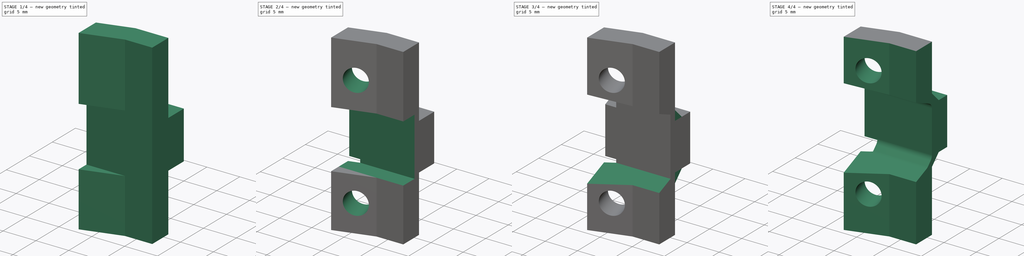
[diagram: build sequence overview — one tinted view per stage of 4, left to right]
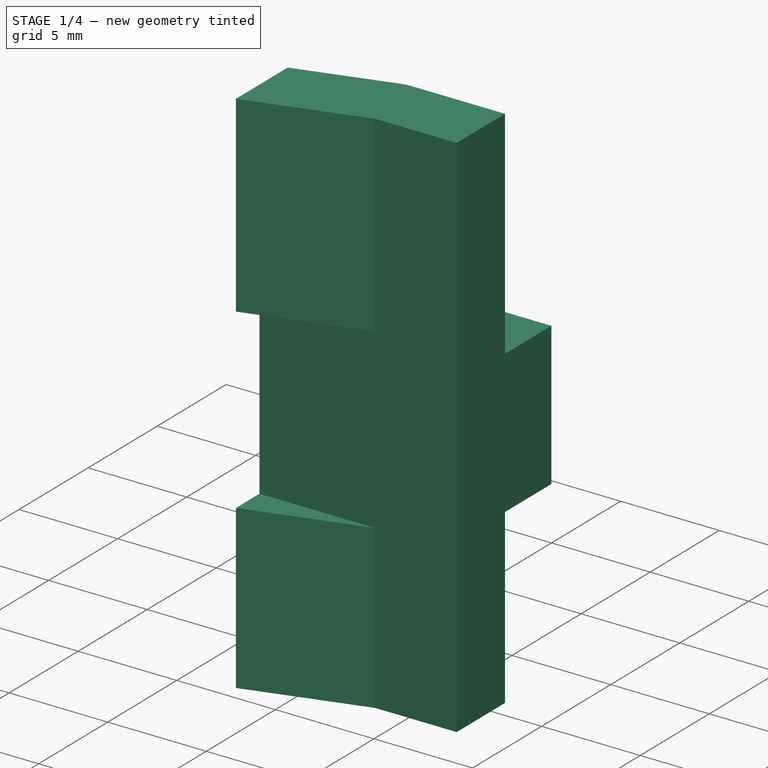
[diagram: stage 1 of 4 — iso view after this stage's code; geometry added in this stage tinted green]
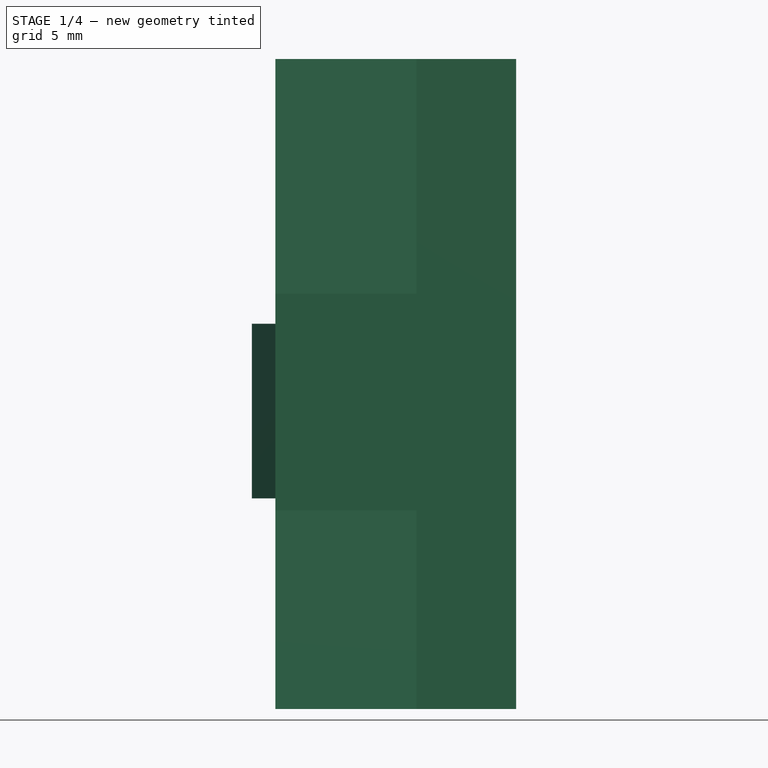
[diagram: stage 1 of 4 — front view after this stage's code; geometry added in this stage tinted green]
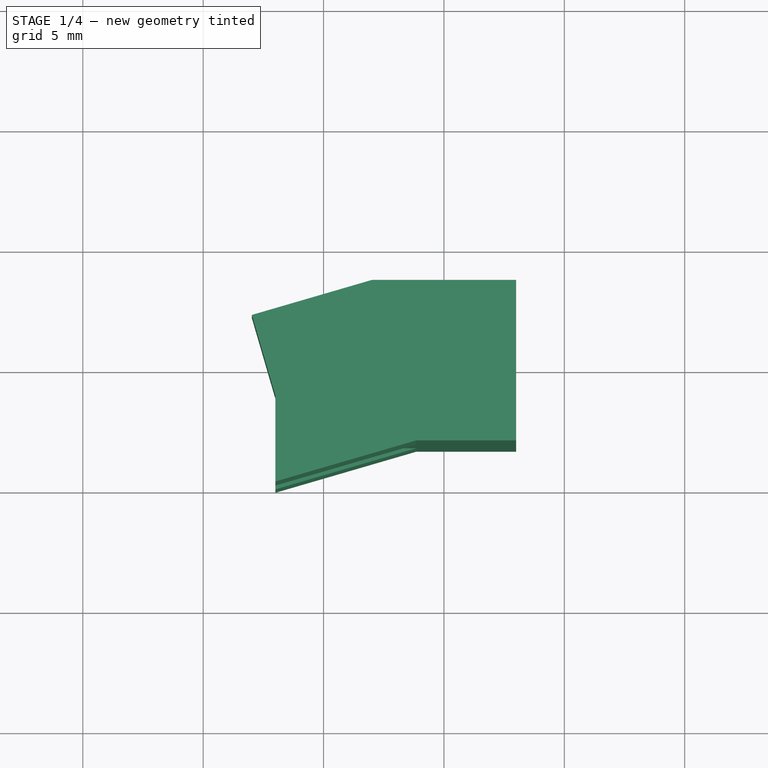
[diagram: stage 1 of 4 — top view after this stage's code; geometry added in this stage tinted green]
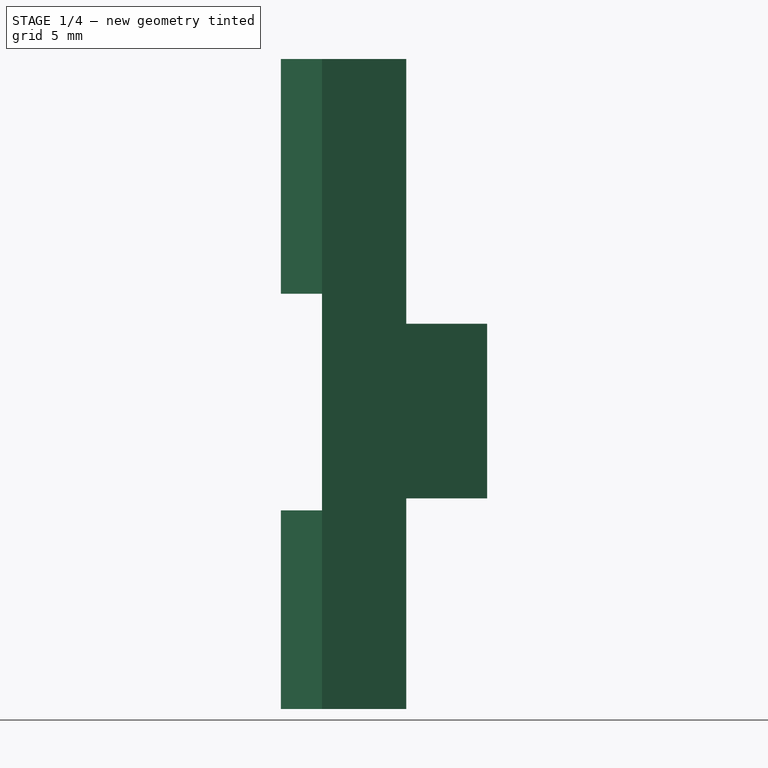
[diagram: stage 1 of 4 — right view after this stage's code; geometry added in this stage tinted green]
FCSTD DOCUMENT  (FreeCAD 0.17R13662 (Git))
Label: x_belt_tensioner_clamp
License: CreativeCommons Attribution-ShareAlike
LicenseURL: http://creativecommons.org/licenses/by-sa/4.0/
objects: Sketcher::SketchObject×11, PartDesign::Pocket×5, PartDesign::Pad×4, PartDesign::AdditivePipe×2, PartDesign::Fillet×2, PartDesign::Body×1, Part::Mirroring×1
note: 37 computed .brp shape members not serialized (recipe doc carries the construction recipe); baked Part::Feature solids carry a one-line shape summary decoded from their .brp

FEATURE [Sketcher::SketchObject] Sketch
  MapMode = 5
  Support = -> [XY_Plane]
  sketch-geometry (7):
    g0: LineSegment StartX=8 StartY=0 StartZ=0 EndX=8 EndY=3.75 EndZ=0
    g1: LineSegment StartX=8 StartY=3.75 StartZ=0 EndX=13 EndY=5.20737 EndZ=0
    g2: LineSegment StartX=13 StartY=5.20737 StartZ=0 EndX=18 EndY=5.20737 EndZ=0
    g3: LineSegment StartX=18 StartY=5.20737 StartZ=0 EndX=18 EndY=1.70737 EndZ=0
    g4: LineSegment [constr] StartX=18 StartY=5.20737 StartZ=0 EndX=18 EndY=5.70737 EndZ=0
    g5: LineSegment StartX=13.8577 StartY=1.70737 StartZ=0 EndX=18 EndY=1.70737 EndZ=0
    g6: LineSegment StartX=8 StartY=0 StartZ=0 EndX=13.8577 EndY=1.70737 EndZ=0
  constraints (21):
    c: PointOnObject(g0,g-1)
    c: Coincident(g0,g1)
    c: Coincident(g1,g2)
    c: Horizontal(g2)
    c: Coincident(g2,g3)
    c: Vertical(g3)
    c: Coincident(g4,g2)
    c: Vertical(g4)
    c: DistanceY(g4,g4) = 0.5
    c: DistanceY(g3,g3) = 3.5
    c: DistanceX(g2) = 18
    c: Coincident(g3,g5)
    c: Coincident(g5,g6)
    c: Coincident(g0,g6)
    c: Horizontal(g5)
    c: Parallel(g6,g1)
    c: DistanceX(g2,g2) = 5
    c: DistanceX(g0) = 8
    c: Vertical(g0)
    c: DistanceY(g0,g0) = 3.75
    c: Angle(g1) = 0.283616
FEATURE [PartDesign::Pad] Pad
  Length = 27
  Length2 = 100
  Profile = -> Sketch
  Type = 0
FEATURE [Sketcher::SketchObject] Sketch001
  ExternalGeometry = -> [Pad]
  MapMode = 5
  Placement = pos=(-0.381003,1.30716,0) rot=(-0.10044,0.703531,0.703531;3.3418rad)
  Support = -> [Pad]
  sketch-geometry (4):
    g0: LineSegment StartX=-8.72976 StartY=16 StartZ=0 EndX=-13.9378 EndY=16 EndZ=0
    g1: LineSegment StartX=-13.9378 StartY=16 StartZ=0 EndX=-13.9378 EndY=8.75 EndZ=0
    g2: LineSegment StartX=-13.9378 StartY=8.75 StartZ=0 EndX=-8.72976 EndY=8.75 EndZ=0
    g3: LineSegment StartX=-8.72976 StartY=8.75 StartZ=0 EndX=-8.72976 EndY=16 EndZ=0
  constraints (12):
    c: Coincident(g0,g1)
    c: Coincident(g1,g2)
    c: Coincident(g2,g3)
    c: Coincident(g3,g0)
    c: Horizontal(g0)
    c: Horizontal(g2)
    c: Vertical(g1)
    c: Vertical(g3)
    c: PointOnObject(g0,g-3)
    c: DistanceY(g0,g-3) = 11
    c: DistanceY(g3,g3) = 7.25
    c: PointOnObject(g0,g-4)
FEATURE [PartDesign::Pad] Pad001
  BaseFeature = -> Pad
  Length = 3.5
  Length2 = 100
  Profile = -> Sketch001
  Type = 0
FEATURE [Sketcher::SketchObject] Sketch002
  ExternalGeometry = -> [Pad001]
  MapMode = 5
  Placement = pos=(0,1.70737,0) rot=(1,0,0;1.5708rad)
  Support = -> [Pad001]
  sketch-geometry (4):
    g0: LineSegment StartX=8 StartY=17.25 StartZ=0 EndX=18 EndY=17.25 EndZ=0
    g1: LineSegment StartX=18 StartY=17.25 StartZ=0 EndX=18 EndY=8.25 EndZ=0
    g2: LineSegment StartX=18 StartY=8.25 StartZ=0 EndX=8 EndY=8.25 EndZ=0
    g3: LineSegment StartX=8 StartY=8.25 StartZ=0 EndX=8 EndY=17.25 EndZ=0
  constraints (12):
    c: Coincident(g0,g1)
    c: Coincident(g1,g2)
    c: Coincident(g2,g3)
    c: Coincident(g3,g0)
    c: Horizontal(g0)
    c: Horizontal(g2)
    c: Vertical(g1)
    c: Vertical(g3)
    c: PointOnObject(g2,g-4)
    c: DistanceY(g-4,g2) = 8.25
    c: DistanceY(g1,g1) = 9
    c: PointOnObject(g1,g-6)
FEATURE [PartDesign::Pocket] Pocket
  BaseFeature = -> Pad001
  Length = 5
  Length2 = 100
  Profile = -> Sketch002
  Reversed = true
  Type = 0
FEATURE [Sketcher::SketchObject] Sketch006
  ExternalGeometry = -> [Pocket]
  MapMode = 5
  Placement = pos=(0,0,8.75) rot=(1,0,0;3.14159rad)
  Support = -> [Pocket]
  sketch-geometry (4):
    g0: LineSegment StartX=18 StartY=-5.20737 StartZ=0 EndX=18 EndY=-8.56754 EndZ=0
    g1: LineSegment StartX=18 StartY=-8.56754 StartZ=0 EndX=12.0206 EndY=-8.56754 EndZ=0
    g2: LineSegment StartX=12.0206 StartY=-8.56754 StartZ=0 EndX=13 EndY=-5.20737 EndZ=0
    g3: LineSegment StartX=13 StartY=-5.20737 StartZ=0 EndX=18 EndY=-5.20737 EndZ=0
  constraints (9):
    c: Coincident(g0,g1)
    c: Coincident(g1,g2)
    c: Coincident(g2,g3)
    c: Coincident(g0,g3)
    c: Coincident(g0,g-3)
    c: Coincident(g1,g-4)
    c: Coincident(g2,g-4)
    c: Vertical(g0)
    c: Horizontal(g1)
FEATURE [PartDesign::Pad] Pad002
  BaseFeature = -> Pocket
  Length = 7.25
  Length2 = 100
  Profile = -> Sketch006
  Reversed = true
  Type = 0
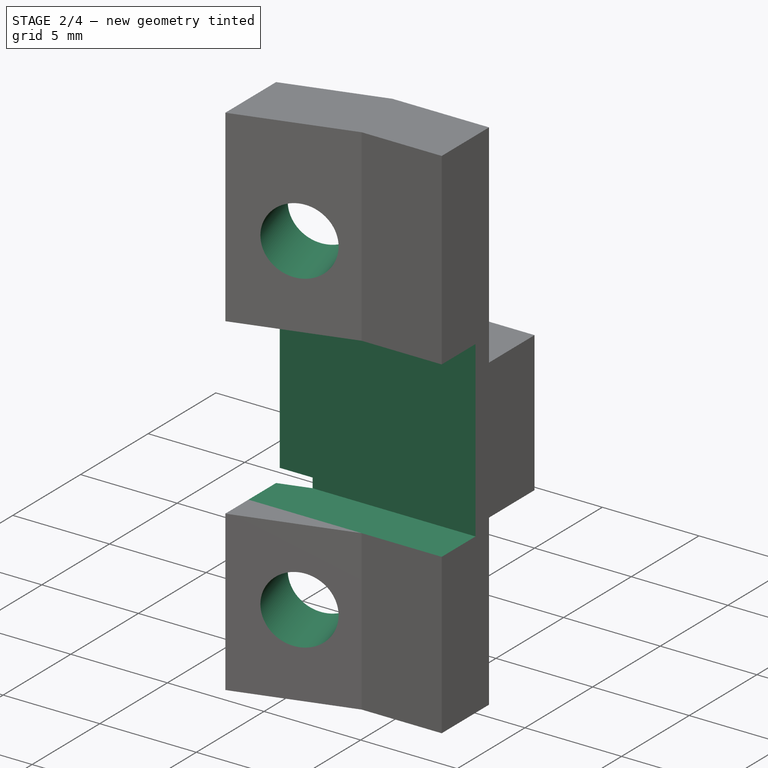
[diagram: stage 2 of 4 — iso view after this stage's code; geometry added in this stage tinted green]
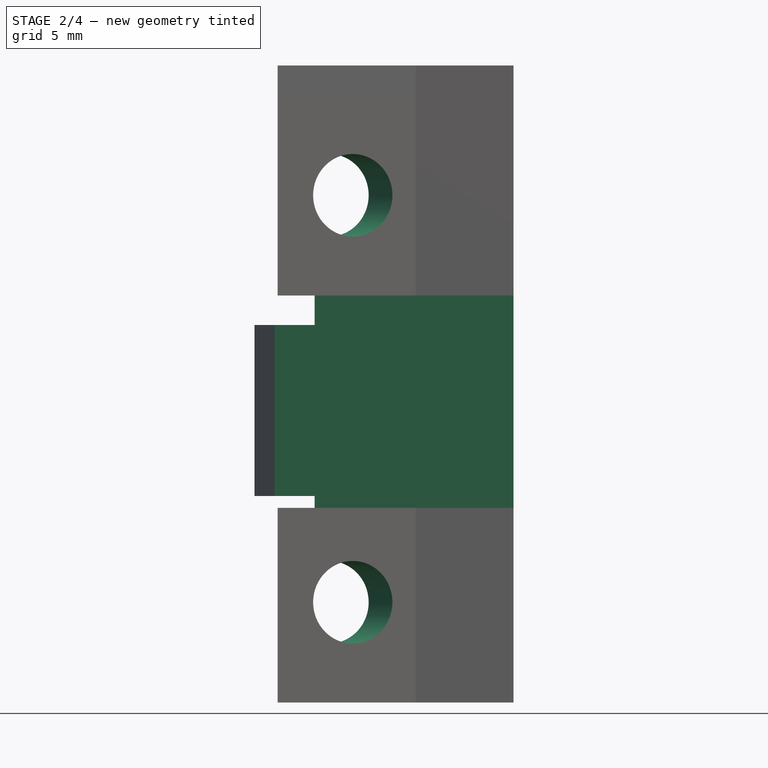
[diagram: stage 2 of 4 — front view after this stage's code; geometry added in this stage tinted green]
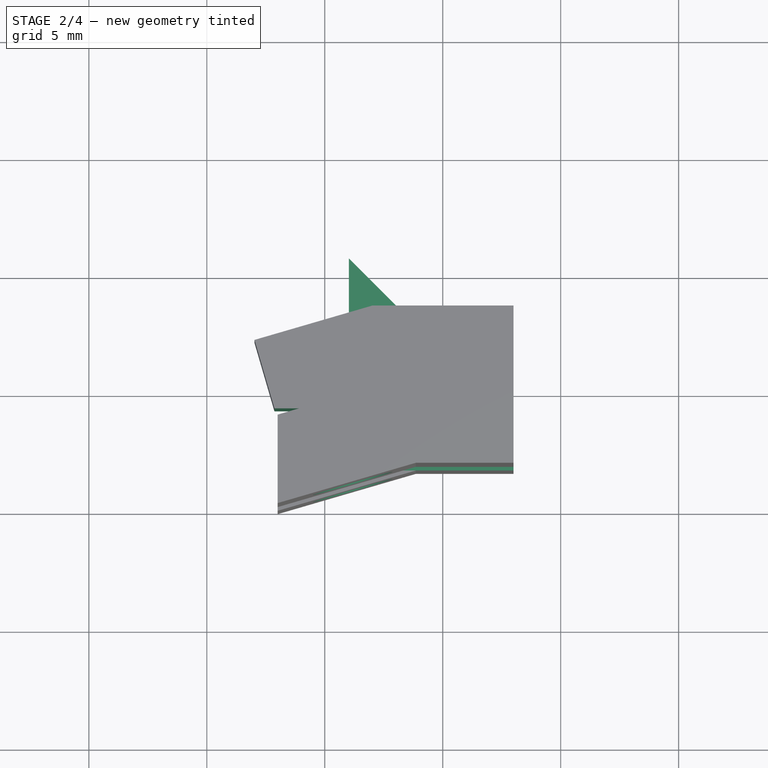
[diagram: stage 2 of 4 — top view after this stage's code; geometry added in this stage tinted green]
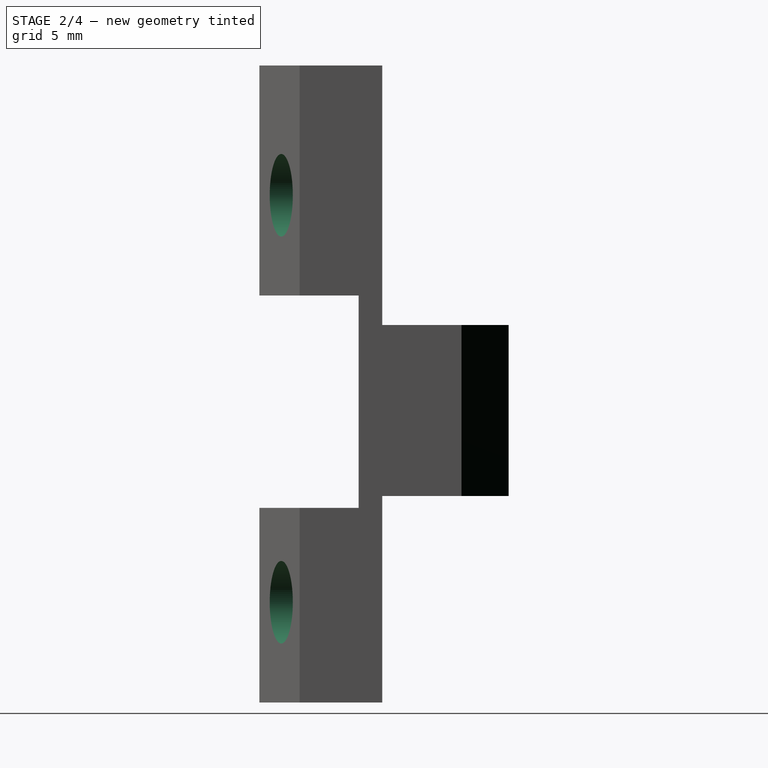
[diagram: stage 2 of 4 — right view after this stage's code; geometry added in this stage tinted green]
FEATURE [Sketcher::SketchObject] Sketch007
  ExternalGeometry = -> [Pad002]
  MapMode = 5
  Placement = pos=(0,0,8.25) rot=(0,0,1;0rad)
  Support = -> [Pad002]
  sketch-geometry (4):
    g0: LineSegment StartX=18 StartY=1.70737 StartZ=0 EndX=7.86669 EndY=1.70737 EndZ=0
    g1: LineSegment StartX=7.86669 StartY=1.70737 StartZ=0 EndX=7.86669 EndY=4.20737 EndZ=0
    g2: LineSegment StartX=7.86669 StartY=4.20737 StartZ=0 EndX=18 EndY=4.20737 EndZ=0
    g3: LineSegment StartX=18 StartY=4.20737 StartZ=0 EndX=18 EndY=1.70737 EndZ=0
  constraints (11):
    c: Coincident(g0,g1)
    c: Coincident(g1,g2)
    c: Coincident(g3,g0)
    c: Horizontal(g0)
    c: Horizontal(g2)
    c: Vertical(g1)
    c: Vertical(g3)
    c: Coincident(g0,g-3)
    c: Coincident(g2,g3)
    c: PointOnObject(g1,g-4)
    c: DistanceY(g2,g-3) = 1
FEATURE [PartDesign::Pocket] Pocket001
  BaseFeature = -> Pad002
  Length = 9
  Length2 = 100
  Profile = -> Sketch007
  Reversed = true
  Type = 0
FEATURE [Sketcher::SketchObject] Sketch004
  MapMode = 5
  Placement = pos=(0.626434,-2.1492,0) rot=(0.980221,0.139942,0.139942;1.59077rad)
  Support = -> [Pocket001]
  sketch-geometry (2):
    g0: Circle CenterX=11 CenterY=4.25 CenterZ=0 NormalX=0 NormalY=0 NormalZ=1 AngleXU=0 Radius=1.75
    g1: Circle CenterX=11 CenterY=21.5 CenterZ=0 NormalX=0 NormalY=0 NormalZ=1 AngleXU=0 Radius=1.75
  constraints (6):
    c: DistanceX(g1) = 11
    c: DistanceY(g1) = 21.5
    c: DistanceX(g0,g1) = 0
    c: DistanceY(g0,g1) = 17.25
    c: Radius(g0) = 1.75
    c: Equal(g0,g1)
FEATURE [PartDesign::Pocket] Pocket002
  BaseFeature = -> Pocket001
  Length = 5
  Length2 = 100
  Profile = -> Sketch004
  Type = 0
FEATURE [Sketcher::SketchObject] Sketch008
  ExternalGeometry = -> [Pocket002]
  MapMode = 5
  Placement = pos=(0,0,16) rot=(0,0,1;0rad)
  Support = -> [Pocket002]
  sketch-geometry (4):
    g0: LineSegment StartX=13.0206 StartY=8.56754 StartZ=0 EndX=11.0206 EndY=10.5675 EndZ=0
    g1: LineSegment StartX=11.0206 StartY=10.5675 StartZ=0 EndX=11.0206 EndY=8.27607 EndZ=0
    g2: LineSegment StartX=11.0206 StartY=8.27607 StartZ=0 EndX=12.0206 EndY=8.56754 EndZ=0
    g3: LineSegment StartX=12.0206 StartY=8.56754 StartZ=0 EndX=13.0206 EndY=8.56754 EndZ=0
  constraints (11):
    c: Coincident(g0,g1)
    c: Coincident(g1,g2)
    c: Coincident(g2,g3)
    c: Coincident(g3,g0)
    c: Vertical(g1)
    c: Angle(g0) = 2.35619
    c: DistanceY(g0,g0) = 2
    c: DistanceX(g2,g2) = 1
    c: Coincident(g2,g-3)
    c: Horizontal(g3)
    c: PointOnObject(g1,g-4)
FEATURE [PartDesign::Pad] Pad003
  BaseFeature = -> Pocket002
  Length = 7.25
  Length2 = 100
  Profile = -> Sketch008
  Reversed = true
  Type = 0
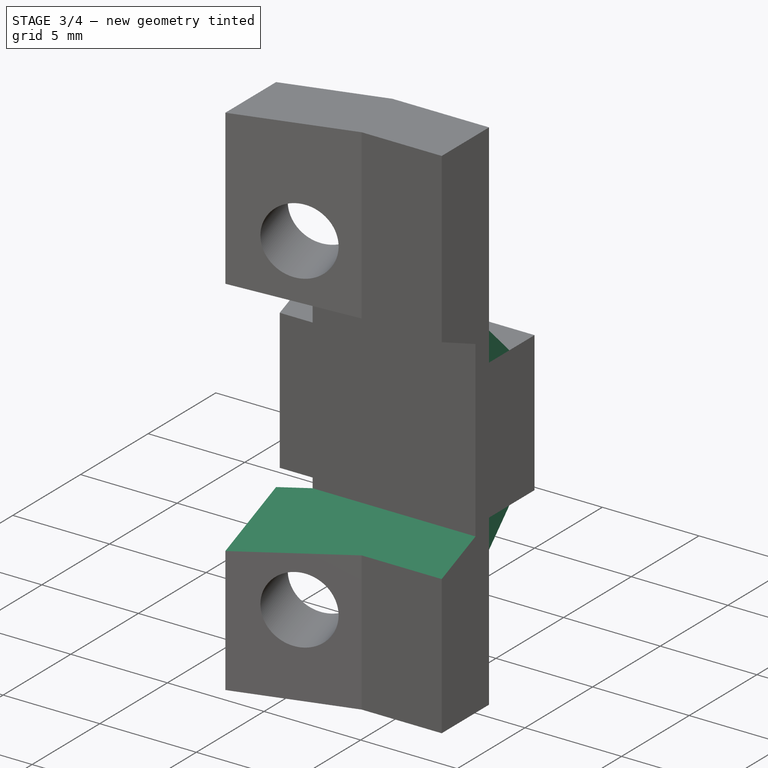
[diagram: stage 3 of 4 — iso view after this stage's code; geometry added in this stage tinted green]
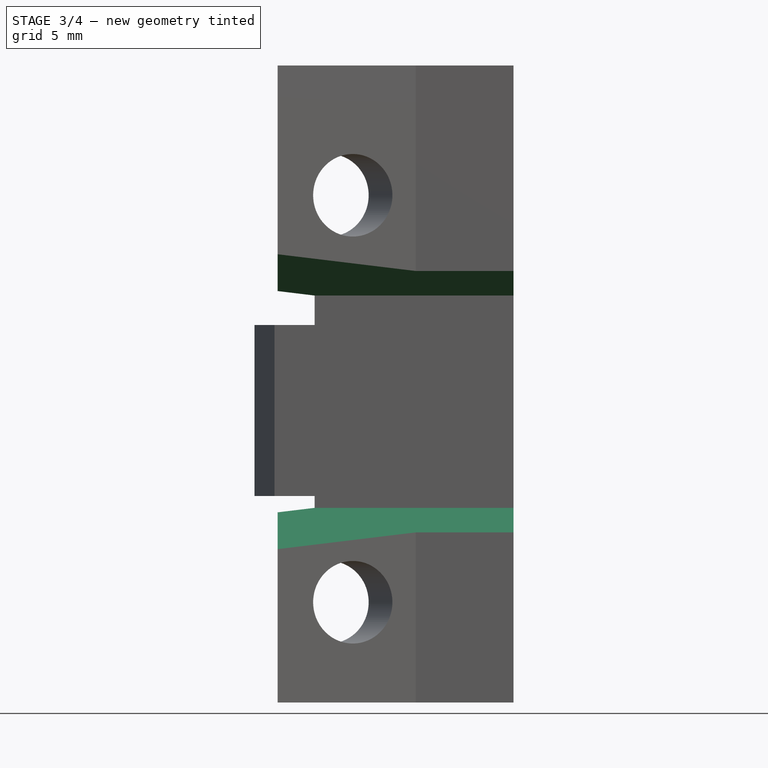
[diagram: stage 3 of 4 — front view after this stage's code; geometry added in this stage tinted green]
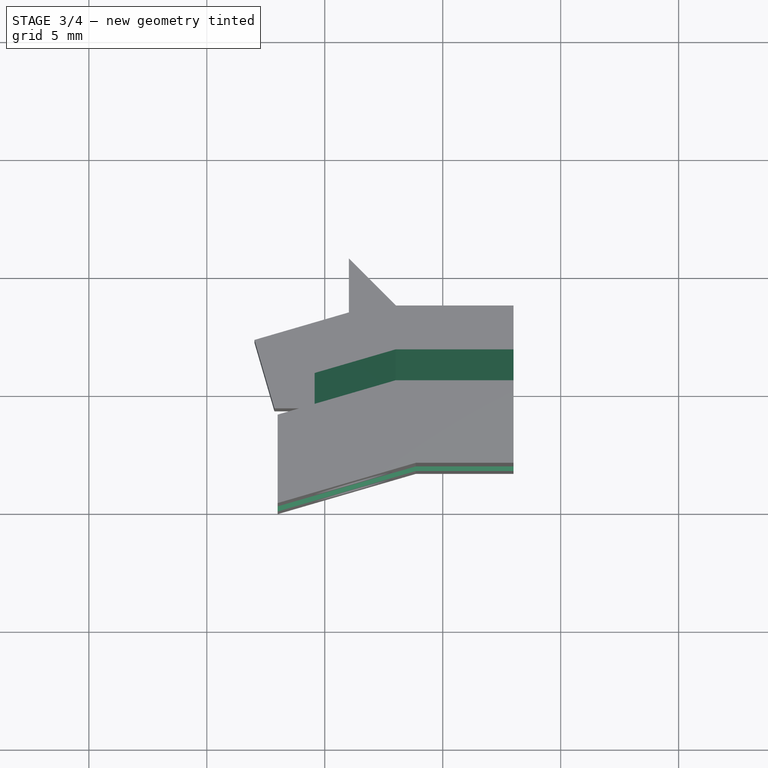
[diagram: stage 3 of 4 — top view after this stage's code; geometry added in this stage tinted green]
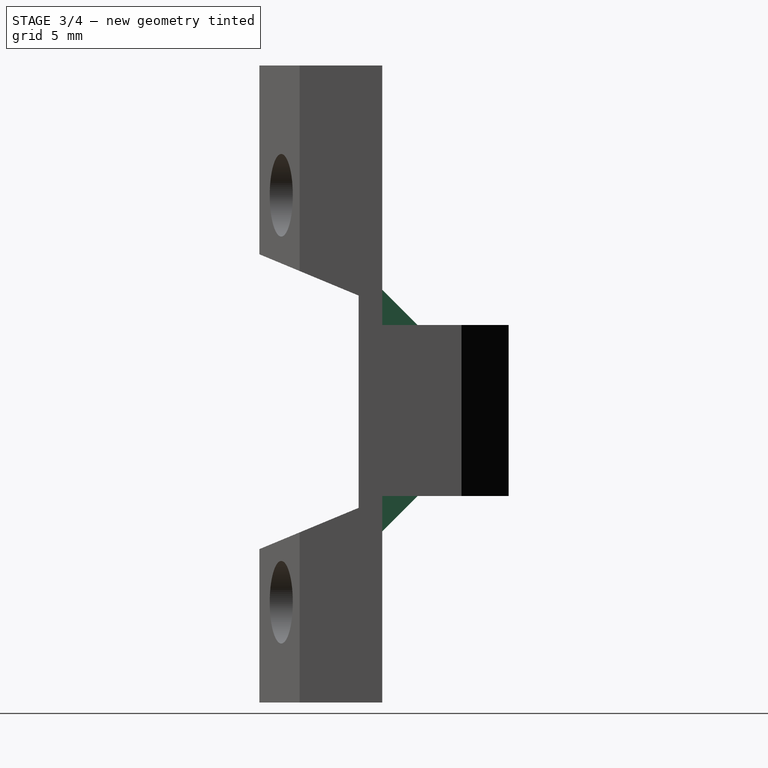
[diagram: stage 3 of 4 — right view after this stage's code; geometry added in this stage tinted green]
FEATURE [Sketcher::SketchObject] Sketch009
  ExternalGeometry = -> [Pad003]
  MapMode = 5
  Placement = pos=(18,0,0) rot=(0.57735,0.57735,0.57735;2.0944rad)
  Support = -> [Pad003]
  sketch-geometry (6):
    g0: LineSegment StartX=4.20737 StartY=17.25 StartZ=0 EndX=0 EndY=19 EndZ=0
    g1: LineSegment StartX=0 StartY=19 StartZ=0 EndX=0 EndY=17.25 EndZ=0
    g2: LineSegment StartX=0 StartY=17.25 StartZ=0 EndX=4.20737 EndY=17.25 EndZ=0
    g3: LineSegment StartX=4.20737 StartY=8.25 StartZ=0 EndX=0 EndY=6.5 EndZ=0
    g4: LineSegment StartX=0 StartY=6.5 StartZ=0 EndX=0 EndY=8.25 EndZ=0
    g5: LineSegment StartX=0 StartY=8.25 StartZ=0 EndX=4.20737 EndY=8.25 EndZ=0
  constraints (14):
    c: Coincident(g0,g1)
    c: Coincident(g1,g2)
    c: Coincident(g3,g4)
    c: Coincident(g4,g5)
    c: Coincident(g3,g5)
    c: Coincident(g3,g-6)
    c: Coincident(g4,g-5)
    c: Vertical(g4)
    c: Vertical(g1)
    c: Coincident(g1,g-4)
    c: Coincident(g0,g2)
    c: Coincident(g0,g-3)
    c: Equal(g1,g4)
    c: DistanceY(g4,g4) = 1.75
FEATURE [PartDesign::Pocket] Pocket003
  BaseFeature = -> Pad003
  Length = 5
  Length2 = 100
  Profile = -> Sketch009
  Type = 1
FEATURE [Sketcher::SketchObject] Sketch010
  ExternalGeometry = -> [Pocket003]
  MapMode = 5
  Placement = pos=(18,0,0) rot=(0.57735,0.57735,0.57735;2.0944rad)
  Support = -> [Pocket003]
  sketch-geometry (3):
    g0: LineSegment StartX=5.20737 StartY=8.75 StartZ=0 EndX=5.20737 EndY=7.25 EndZ=0
    g1: LineSegment StartX=5.20737 StartY=7.25 StartZ=0 EndX=6.70737 EndY=8.75 EndZ=0
    g2: LineSegment StartX=6.70737 StartY=8.75 StartZ=0 EndX=5.20737 EndY=8.75 EndZ=0
  constraints (8):
    c: Coincident(g0,g1)
    c: Coincident(g1,g2)
    c: Coincident(g0,g2)
    c: Coincident(g0,g-4)
    c: Horizontal(g2)
    c: Vertical(g0)
    c: Equal(g0,g2)
    c: DistanceX(g2,g2) = 1.5
FEATURE [PartDesign::AdditivePipe] AdditivePipe
  AuxilleryCurvelinear = true
  AuxillerySpineTangent = false
  BaseFeature = -> Pocket003
  Binormal = (0,0,0)
  Mode = 0
  Profile = -> Sketch010
  Spine = -> Pocket003 [Edge24,Edge21]
  SpineTangent = false
  Transformation = 0
  Transition = 0
FEATURE [Sketcher::SketchObject] Sketch011
  ExternalGeometry = -> [AdditivePipe]
  MapMode = 5
  Placement = pos=(18,0,0) rot=(0.57735,0.57735,0.57735;2.0944rad)
  Support = -> [AdditivePipe]
  sketch-geometry (3):
    g0: LineSegment StartX=5.20737 StartY=16 StartZ=0 EndX=5.20737 EndY=17.5 EndZ=0
    g1: LineSegment StartX=5.20737 StartY=17.5 StartZ=0 EndX=6.70737 EndY=16 EndZ=0
    g2: LineSegment StartX=6.70737 StartY=16 StartZ=0 EndX=5.20737 EndY=16 EndZ=0
  constraints (8):
    c: Coincident(g0,g1)
    c: Coincident(g1,g2)
    c: Coincident(g0,g2)
    c: Coincident(g0,g-4)
    c: Vertical(g0)
    c: Horizontal(g2)
    c: Equal(g2,g0)
    c: Equal(g0,g-5)
FEATURE [PartDesign::AdditivePipe] AdditivePipe001
  AuxilleryCurvelinear = true
  AuxillerySpineTangent = false
  BaseFeature = -> AdditivePipe
  Binormal = (0,0,0)
  Mode = 0
  Profile = -> Sketch011
  Spine = -> AdditivePipe [Edge49,Edge67]
  SpineTangent = false
  Transformation = 0
  Transition = 0
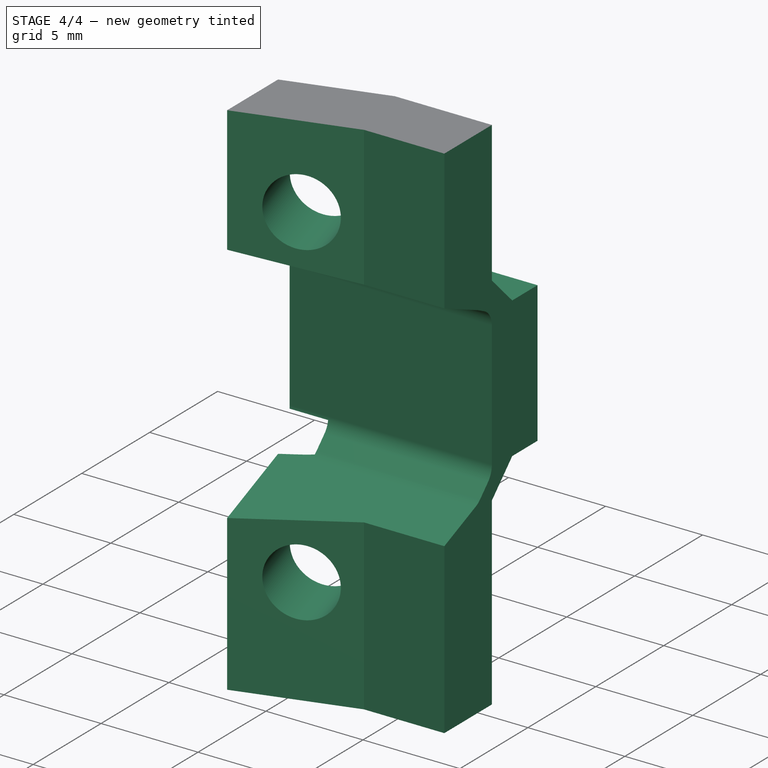
[diagram: stage 4 of 4 — iso view after this stage's code; geometry added in this stage tinted green]
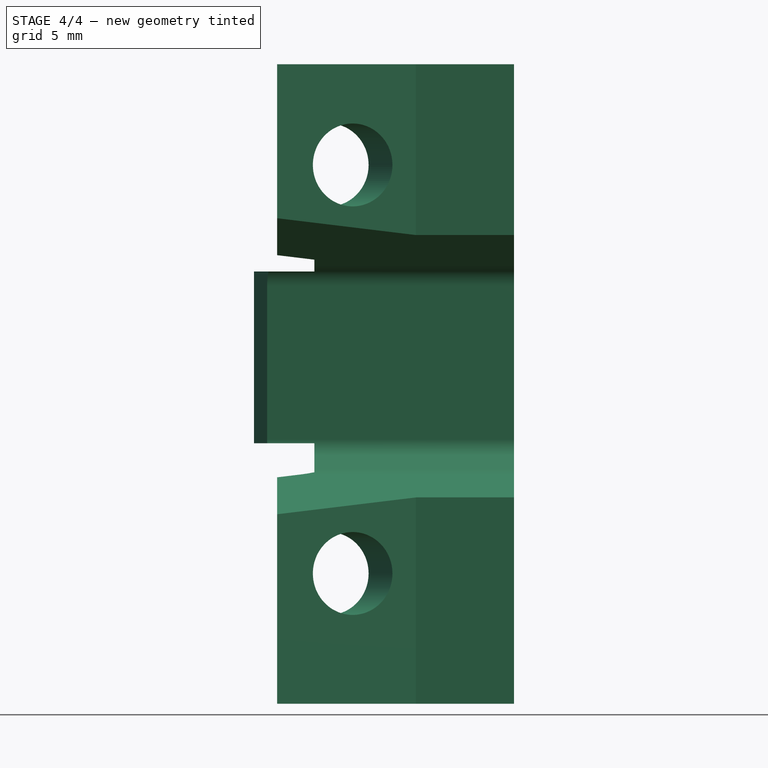
[diagram: stage 4 of 4 — front view after this stage's code; geometry added in this stage tinted green]
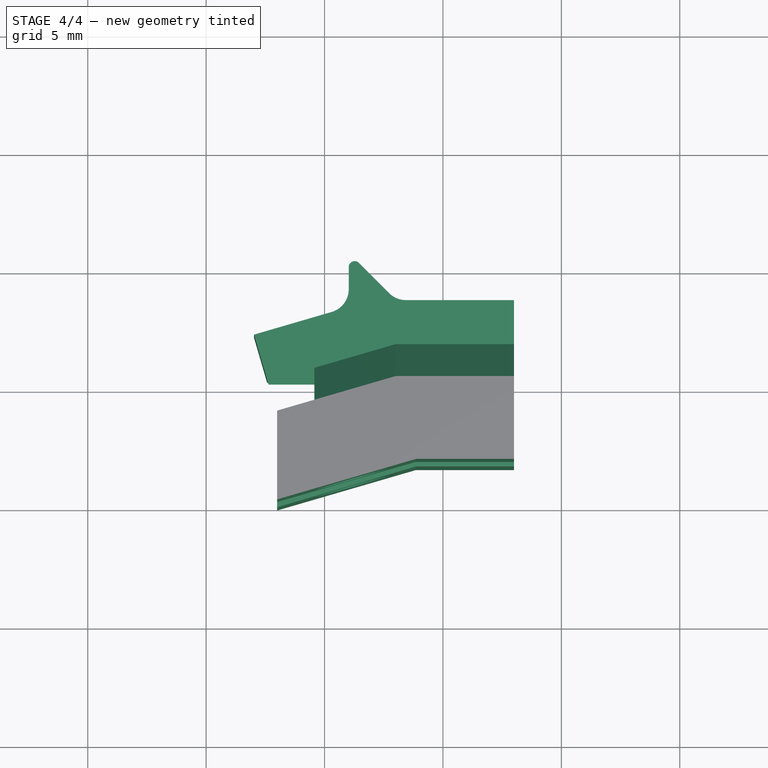
[diagram: stage 4 of 4 — top view after this stage's code; geometry added in this stage tinted green]
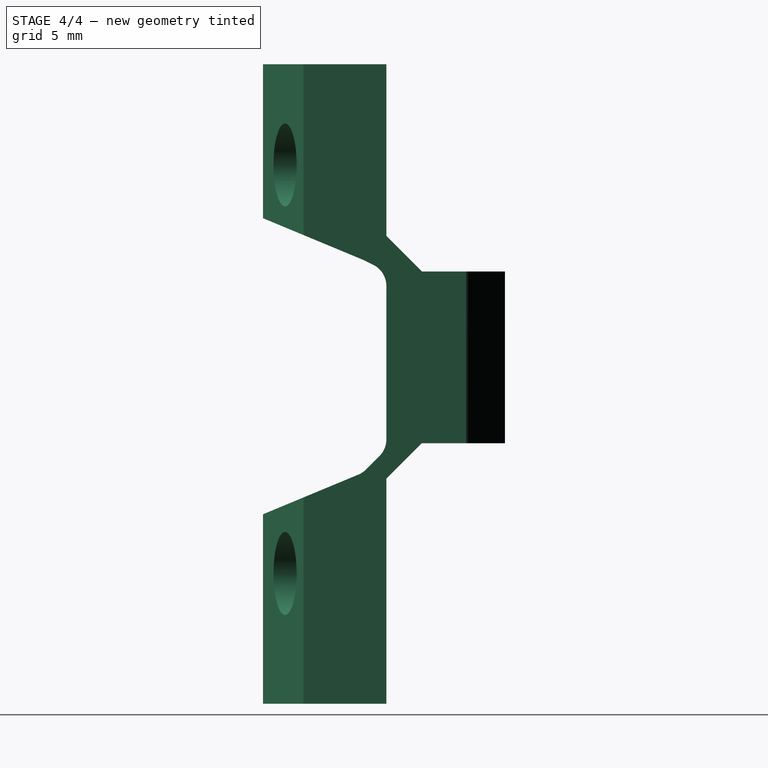
[diagram: stage 4 of 4 — right view after this stage's code; geometry added in this stage tinted green]
FEATURE [Sketcher::SketchObject] Sketch012
  ExternalGeometry = -> [AdditivePipe001]
  MapMode = 5
  Placement = pos=(18,0,0) rot=(0.57735,0.57735,0.57735;2.0944rad)
  Support = -> [AdditivePipe001]
  sketch-geometry (4):
    g0: LineSegment StartX=4.20737 StartY=17.25 StartZ=0 EndX=5.20737 EndY=16.25 EndZ=0
    g1: LineSegment StartX=5.20737 StartY=16.25 StartZ=0 EndX=5.20737 EndY=8.73773 EndZ=0
    g2: LineSegment StartX=5.20737 StartY=8.73773 StartZ=0 EndX=4.20737 EndY=8.25 EndZ=0
    g3: LineSegment StartX=4.20737 StartY=17.25 StartZ=0 EndX=4.20737 EndY=8.25 EndZ=0
  constraints (10):
    c: Coincident(g0,g1)
    c: Coincident(g1,g2)
    c: Coincident(g2,g-3)
    c: Coincident(g2,g3)
    c: Coincident(g0,g3)
    c: Coincident(g0,g-3)
    c: Angle(g2) = -2.68781
    c: Angle(g0) = -0.785398
    c: Vertical(g1)
    c: DistanceX(g0,g0) = 1
FEATURE [PartDesign::Pocket] Pocket004
  BaseFeature = -> AdditivePipe001
  Length = 5
  Length2 = 100
  Profile = -> Sketch012
  Type = 1
FEATURE [PartDesign::Fillet] Fillet
  Base = -> Pocket004 [Edge28,Edge45,Edge68,Edge70,Edge73]
  BaseFeature = -> Pocket004
  Radius = 1
FEATURE [PartDesign::Fillet] Fillet001
  Base = -> Fillet [Edge117]
  BaseFeature = -> Fillet
  Radius = 0.25
FEATURE [PartDesign::Body] Body
  Group = -> [Sketch,Pad,Sketch001,Pad001,Sketch002,Pocket,Sketch004,Sketch006,Pad002,Sketch007,Pocket001,Sketch008,Pocket002,Pad003,Sketch009,Pocket003,Sketch010,AdditivePipe,Sketch011,AdditivePipe001,Sketch012,Pocket004,Fillet,Fillet001]
  Origin = -> Origin
  Tip = -> Fillet001
FEATURE [Part::Mirroring] Part__Mirroring  label="Fillet001 (Mirror #1)"
  Base = (0,0,0)
  Normal = (0,0,1)
  Source = -> Fillet001
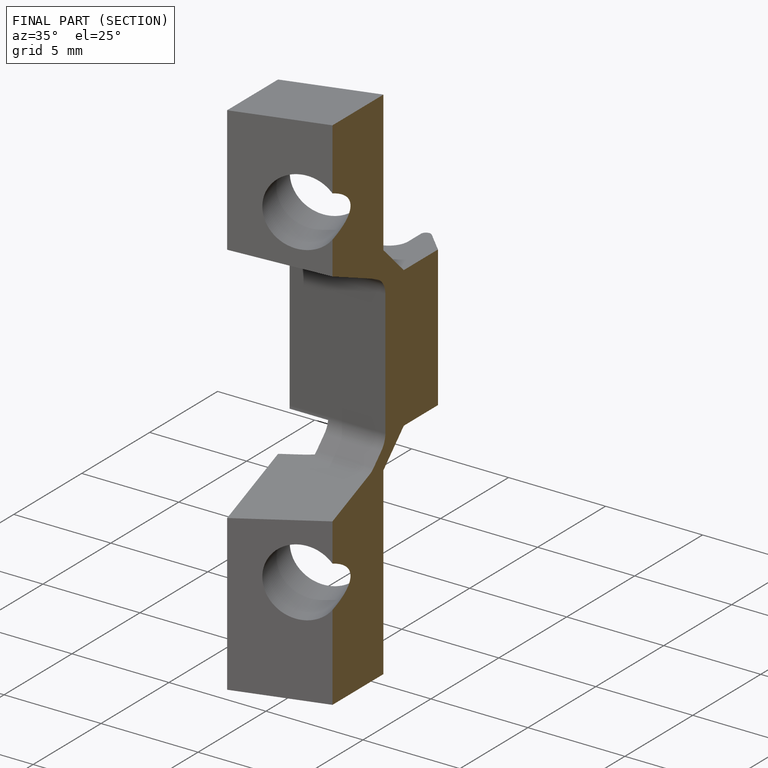
[diagram: finished part — half-section view (interior)]
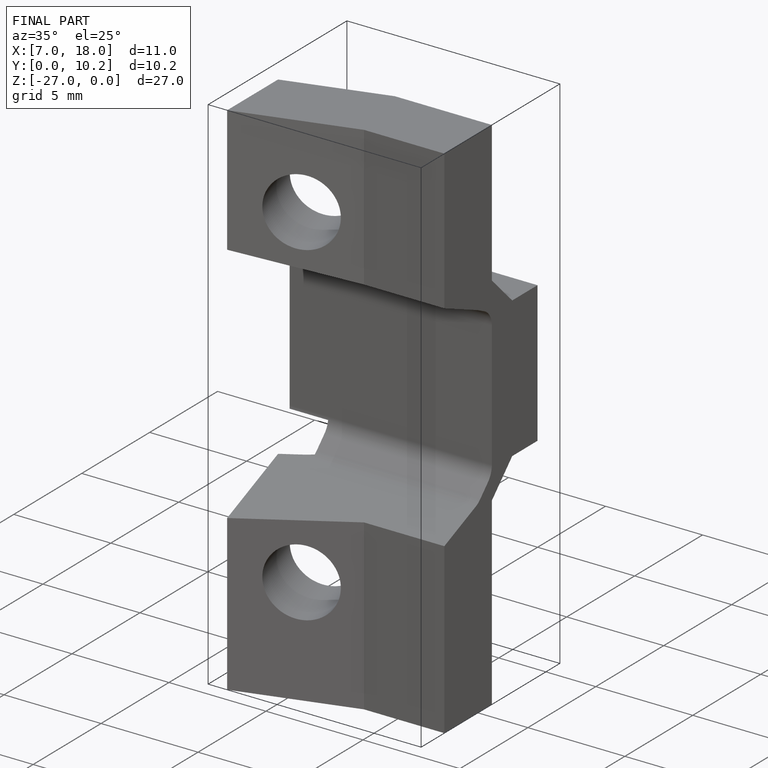
[diagram: finished part — iso view with bounding-box wireframe]
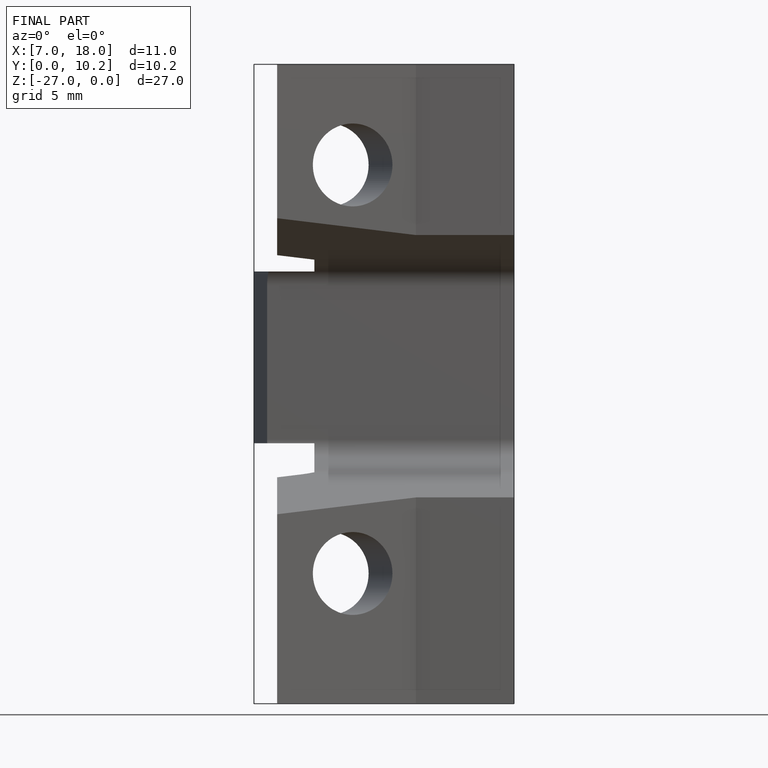
[diagram: finished part — front view with bounding-box wireframe]
